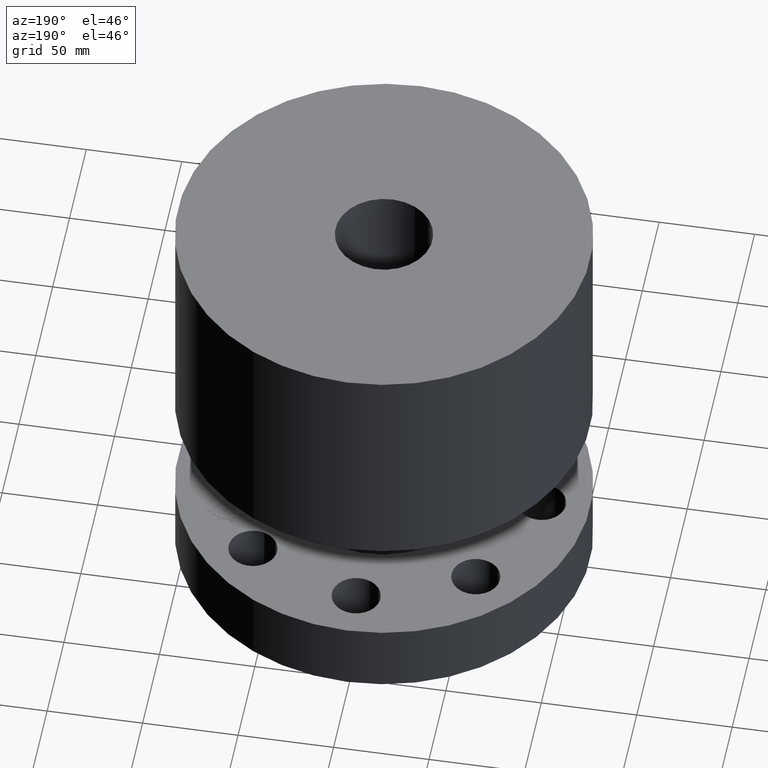
[diagram: clean part render]
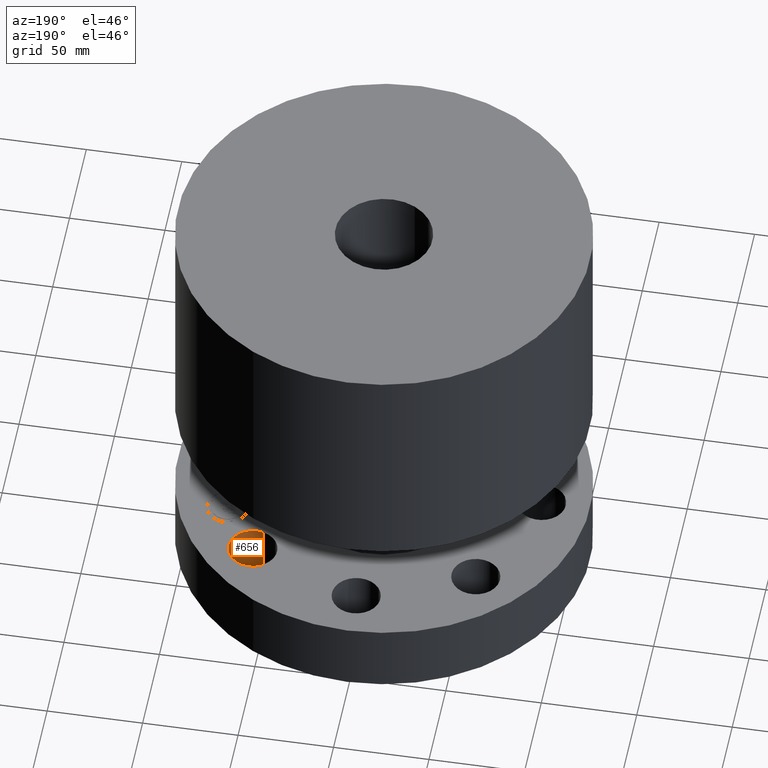
[diagram: same view with one face highlighted and labeled with its STEP entity id]
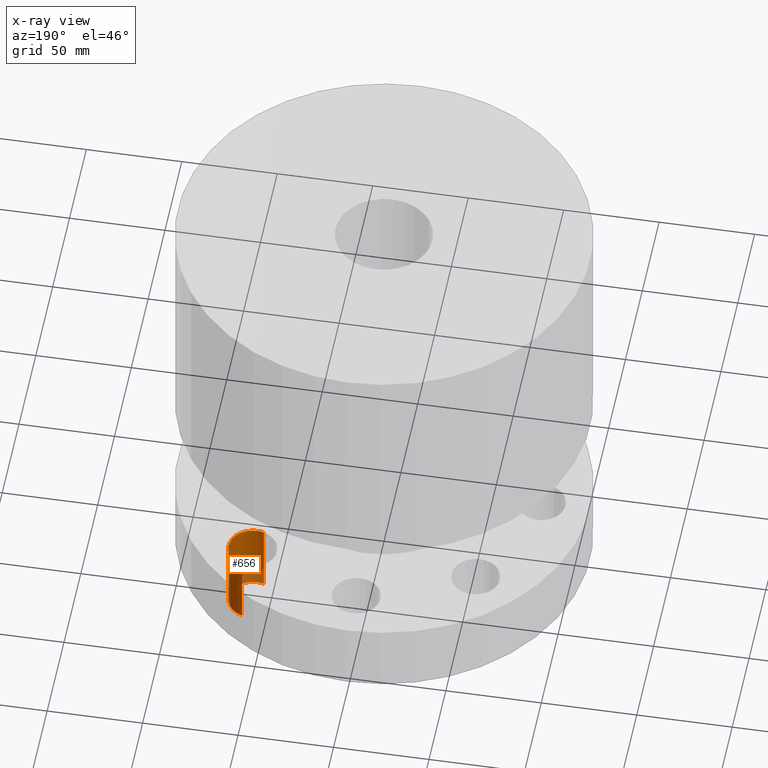
[diagram: x-ray of the same camera — body ghosted, the highlighted face saturated]
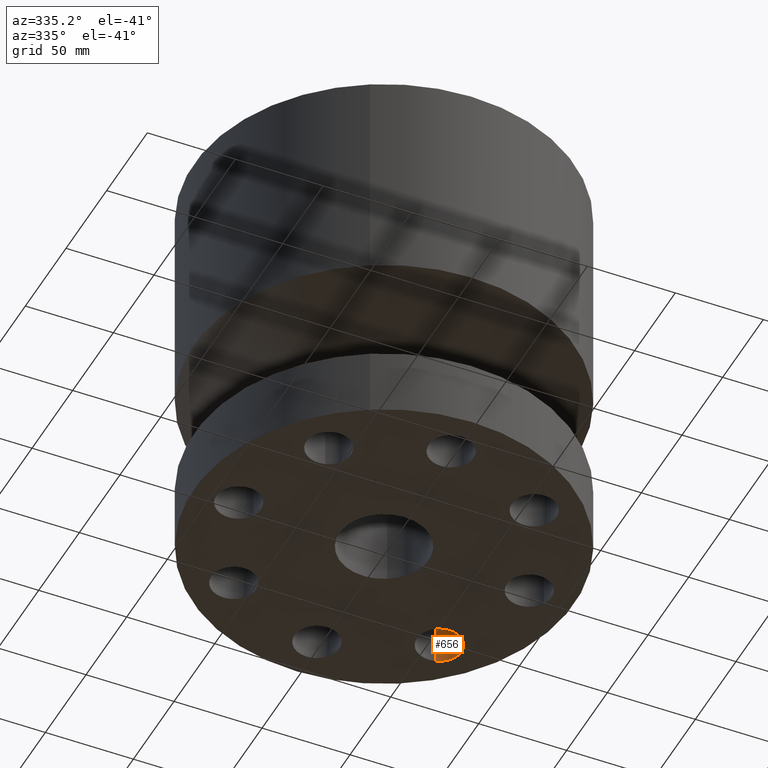
[diagram: same view with one face highlighted and labeled with its STEP entity id]
A machine part, auxiliary view. The second image highlights one B-rep face of the part: STEP entity #656.
The next image is the same camera in x-ray: the body ghosted, the highlighted face saturated — about 14% of this face is hidden behind the body in this view.
A second angle (auxiliary view) of the same face is appended — the face is thin or edge-on in the first view.
In plain terms, the highlighted cylindrical surface (edge-blend (fillet) strip) has radius 12.7 mm, axis along (0, -0, 1).
Its self-contained STEP definition (entity closure, byte-faithful):
#244=AXIS2_PLACEMENT_3D('Circle Axis2P3D',#242,#243,$) ;
#629=AXIS2_PLACEMENT_3D('Cylinder Axis2P3D',#626,#627,#628) ;
#640=AXIS2_PLACEMENT_3D('Circle Axis2P3D',#638,#639,$) ;
#237=CARTESIAN_POINT('Vertex',(2.15732727329,1.81832222387,1.50000000001)) ;
#239=CARTESIAN_POINT('Vertex',(2.43886680444,2.77787185386,1.50000000001)) ;
#242=CARTESIAN_POINT('Axis2P3D Location',(2.29809703887,2.29809703887,1.50000000001)) ;
#626=CARTESIAN_POINT('Axis2P3D Location',(2.29809703887,2.29809703887,0.00393700787402)) ;
#631=CARTESIAN_POINT('Line Origine',(2.43886680444,2.77787185386,0.750000000003)) ;
#635=CARTESIAN_POINT('Vertex',(2.43886680444,2.77787185386,2.2401153548E-016)) ;
#638=CARTESIAN_POINT('Axis2P3D Location',(2.29809703887,2.29809703887,0.)) ;
#642=CARTESIAN_POINT('Vertex',(2.15732727329,1.81832222387,2.2401153548E-016)) ;
#645=CARTESIAN_POINT('Line Origine',(2.15732727329,1.81832222387,0.750000000003)) ;
#243=DIRECTION('Axis2P3D Direction',(0.,0.,-0.0393700787402)) ;
#627=DIRECTION('Axis2P3D Direction',(0.,-0.,0.0393700787402)) ;
#628=DIRECTION('Axis2P3D XDirection',(0.0110842335096,0.0377775444876,0.)) ;
#632=DIRECTION('Vector Direction',(0.,0.,0.0393700787402)) ;
#639=DIRECTION('Axis2P3D Direction',(0.,-0.,0.0393700787402)) ;
#646=DIRECTION('Vector Direction',(0.,0.,0.0393700787402)) ;
#633=VECTOR('Line Direction',#632,0.0393700787402) ;
#647=VECTOR('Line Direction',#646,0.0393700787402) ;
#651=ORIENTED_EDGE('',*,*,#637,.T.) ;
#652=ORIENTED_EDGE('',*,*,#644,.T.) ;
#653=ORIENTED_EDGE('',*,*,#649,.F.) ;
#654=ORIENTED_EDGE('',*,*,#246,.F.) ;
#656=ADVANCED_FACE('PartBody',(#655),#630,.F.) ;
#245=CIRCLE('generated circle',#244,0.500000000002) ;
#641=CIRCLE('generated circle',#640,0.500000000002) ;
#630=CYLINDRICAL_SURFACE('generated cylinder',#629,0.500000000002) ;
#246=EDGE_CURVE('',#240,#238,#245,.T.) ;
#637=EDGE_CURVE('',#240,#636,#634,.F.) ;
#644=EDGE_CURVE('',#636,#643,#641,.F.) ;
#649=EDGE_CURVE('',#238,#643,#648,.F.) ;
#650=EDGE_LOOP('',(#651,#652,#653,#654)) ;
#655=FACE_OUTER_BOUND('',#650,.T.) ;
#634=LINE('Line',#631,#633) ;
#648=LINE('Line',#645,#647) ;
#238=VERTEX_POINT('',#237) ;
#240=VERTEX_POINT('',#239) ;
#636=VERTEX_POINT('',#635) ;
#643=VERTEX_POINT('',#642) ;